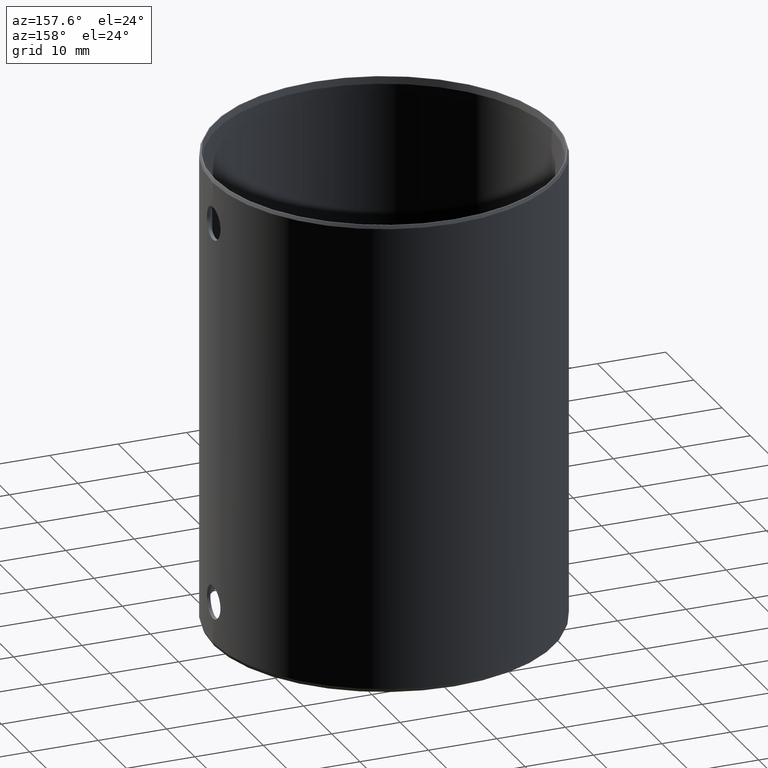
[diagram: clean part render]
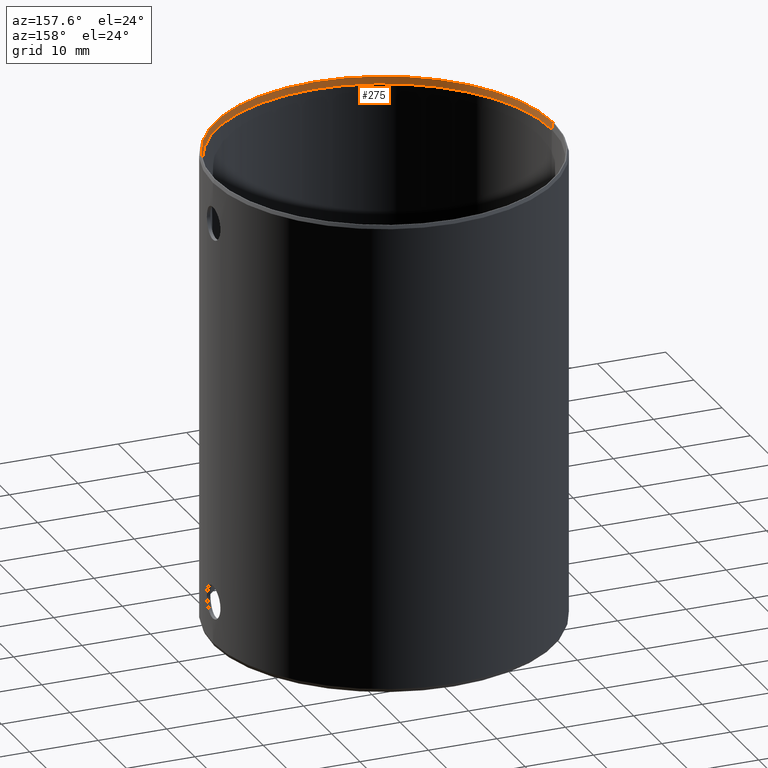
[diagram: same view with one face highlighted and labeled with its STEP entity id]
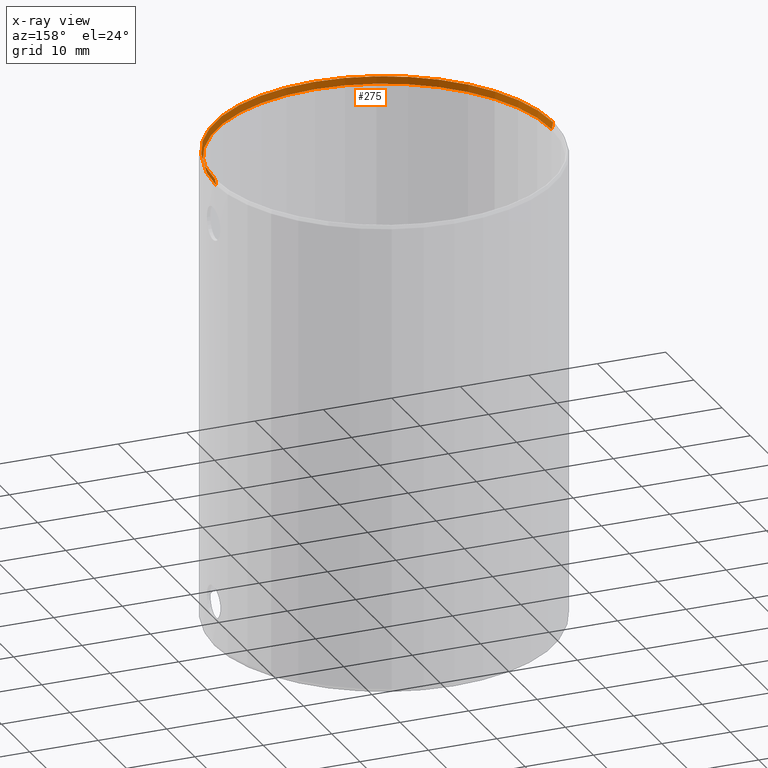
[diagram: x-ray of the same camera — body ghosted, the highlighted face saturated]
A machine part, auxiliary view. The second image highlights one B-rep face of the part: STEP entity #275.
The next image is the same camera in x-ray: the body ghosted, the highlighted face saturated — about 0% of this face is hidden behind the body in this view.
In plain terms, the highlighted conical surface has half-angle 11.31 deg.
Its self-contained STEP definition (entity closure, byte-faithful):
#23 = EDGE_LOOP ( 'NONE', ( #432, #539, #485, #291 ) ) ;
#47 = LINE ( 'NONE', #409, #601 ) ;
#50 = DIRECTION ( 'NONE',  ( 1.000000000000000000, 0.0000000000000000000, 0.0000000000000000000 ) ) ;
#52 = CARTESIAN_POINT ( 'NONE',  ( 24.50000000000000000, 3.000384657911015500E-015, 68.00000000000015600 ) ) ;
#53 = CARTESIAN_POINT ( 'NONE',  ( -24.50000000000000000, 0.0000000000000000000, 68.00000000000015600 ) ) ;
#74 = VERTEX_POINT ( 'NONE', #77 ) ;
#77 = CARTESIAN_POINT ( 'NONE',  ( 24.69999999999996700, 0.0000000000000000000, 69.00000000000000000 ) ) ;
#104 = CONICAL_SURFACE ( 'NONE', #616, 24.50000000000000000, 0.1973955598498787500 ) ;
#134 = DIRECTION ( 'NONE',  ( 1.000000000000000000, 0.0000000000000000000, 0.0000000000000000000 ) ) ;
#151 = DIRECTION ( 'NONE',  ( 1.000000000000000000, 0.0000000000000000000, 0.0000000000000000000 ) ) ;
#178 = FACE_OUTER_BOUND ( 'NONE', #23, .T. ) ;
#226 = EDGE_CURVE ( 'NONE', #74, #242, #609, .T. ) ;
#242 = VERTEX_POINT ( 'NONE', #395 ) ;
#272 = CARTESIAN_POINT ( 'NONE',  ( 0.0000000000000000000, 0.0000000000000000000, 68.00000000000015600 ) ) ;
#275 = ADVANCED_FACE ( 'NONE', ( #178 ), #104, .F. ) ;
#291 = ORIENTED_EDGE ( 'NONE', *, *, #680, .F. ) ;
#339 = CIRCLE ( 'NONE', #531, 24.50000000000000000 ) ;
#395 = CARTESIAN_POINT ( 'NONE',  ( -24.69999999999996700, 3.024877593893958600E-015, 69.00000000000000000 ) ) ;
#407 = DIRECTION ( 'NONE',  ( 0.0000000000000000000, 0.0000000000000000000, 1.000000000000000000 ) ) ;
#409 = CARTESIAN_POINT ( 'NONE',  ( 24.50000000000000000, 0.0000000000000000000, 68.00000000000015600 ) ) ;
#414 = CARTESIAN_POINT ( 'NONE',  ( -24.50000000000000000, 3.000384657911015500E-015, 68.00000000000015600 ) ) ;
#432 = ORIENTED_EDGE ( 'NONE', *, *, #735, .F. ) ;
#439 = CARTESIAN_POINT ( 'NONE',  ( 0.0000000000000000000, 0.0000000000000000000, 69.00000000000000000 ) ) ;
#470 = DIRECTION ( 'NONE',  ( -0.1961161351381820700, 2.401729971581244500E-017, 0.9805806756909205600 ) ) ;
#483 = VECTOR ( 'NONE', #470, 1000.000000000000100 ) ;
#485 = ORIENTED_EDGE ( 'NONE', *, *, #226, .F. ) ;
#503 = DIRECTION ( 'NONE',  ( -0.0000000000000000000, -0.0000000000000000000, -1.000000000000000000 ) ) ;
#526 = CARTESIAN_POINT ( 'NONE',  ( 0.0000000000000000000, 0.0000000000000000000, 68.00000000000015600 ) ) ;
#531 = AXIS2_PLACEMENT_3D ( 'NONE', #272, #407, #50 ) ;
#539 = ORIENTED_EDGE ( 'NONE', *, *, #720, .T. ) ;
#593 = VERTEX_POINT ( 'NONE', #53 ) ;
#601 = VECTOR ( 'NONE', #797, 1000.000000000000100 ) ;
#609 = CIRCLE ( 'NONE', #698, 24.69999999999996700 ) ;
#616 = AXIS2_PLACEMENT_3D ( 'NONE', #526, #717, #151 ) ;
#662 = LINE ( 'NONE', #414, #483 ) ;
#680 = EDGE_CURVE ( 'NONE', #740, #74, #47, .T. ) ;
#698 = AXIS2_PLACEMENT_3D ( 'NONE', #439, #503, #134 ) ;
#717 = DIRECTION ( 'NONE',  ( 0.0000000000000000000, 0.0000000000000000000, 1.000000000000000000 ) ) ;
#720 = EDGE_CURVE ( 'NONE', #593, #242, #662, .T. ) ;
#735 = EDGE_CURVE ( 'NONE', #593, #740, #339, .T. ) ;
#740 = VERTEX_POINT ( 'NONE', #52 ) ;
#797 = DIRECTION ( 'NONE',  ( 0.1961161351381820700, 0.0000000000000000000, 0.9805806756909205600 ) ) ;